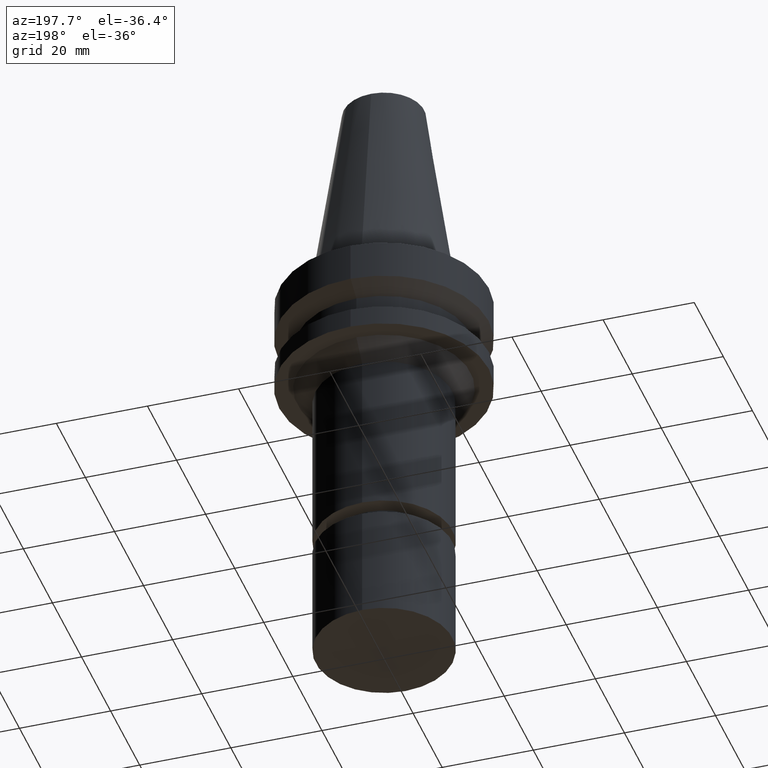
[diagram: clean part render]
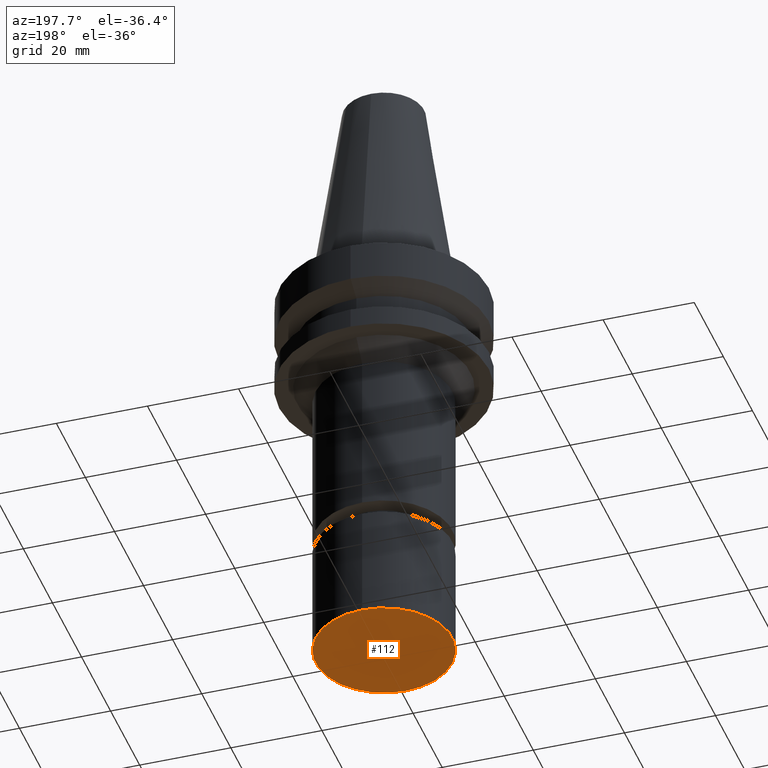
[diagram: same view with one face highlighted and labeled with its STEP entity id]
A machine part, auxiliary view. The second image highlights one B-rep face of the part: STEP entity #112.
In plain terms, the highlighted planar face has unit normal (0, 0, -1).
Its self-contained STEP definition (entity closure, byte-faithful):
#112=ADVANCED_FACE('Unnamed[1]',(#257),#258,.T.);
#114=EDGE_CURVE('Unnamed[1]',#260,#260,#261,.T.);
#257=FACE_OUTER_BOUND('',#446,.T.);
#258=PLANE('',#447);
#260=VERTEX_POINT('',#450);
#261=CIRCLE('',#451,15.0);
#446=EDGE_LOOP('',(#641));
#447=AXIS2_PLACEMENT_3D('',#642,#643,#644);
#450=CARTESIAN_POINT('',(5.51091059616309E-015,15.0,-90.0));
#451=AXIS2_PLACEMENT_3D('',#645,#646,#647);
#641=ORIENTED_EDGE('',*,*,#114,.T.);
#642=CARTESIAN_POINT('',(5.51091059616309E-015,7.50000000000001,-90.0));
#643=DIRECTION('',(6.12323399573677E-017,1.22464679914735E-016,-1.0));
#644=DIRECTION('',(-1.23259516440783E-032,1.0,1.22464679914735E-016));
#645=CARTESIAN_POINT('',(5.51091059616309E-015,1.10218211923262E-014,-90.0));
#646=DIRECTION('',(6.12323399573677E-017,1.22464679914735E-016,-1.0));
#647=DIRECTION('',(-1.23259516440783E-032,1.0,1.22464679914735E-016));